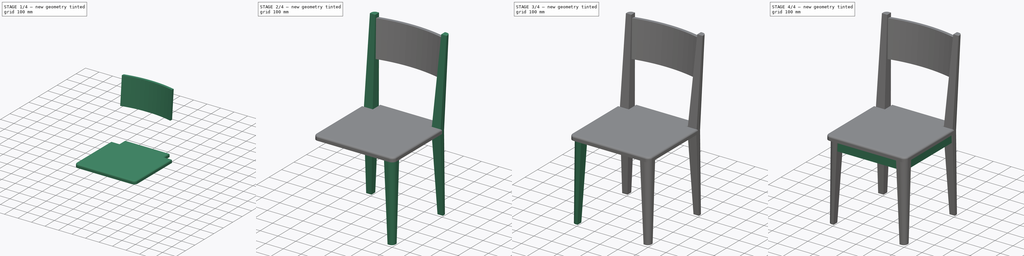
[diagram: build sequence overview — one tinted view per stage of 4, left to right]
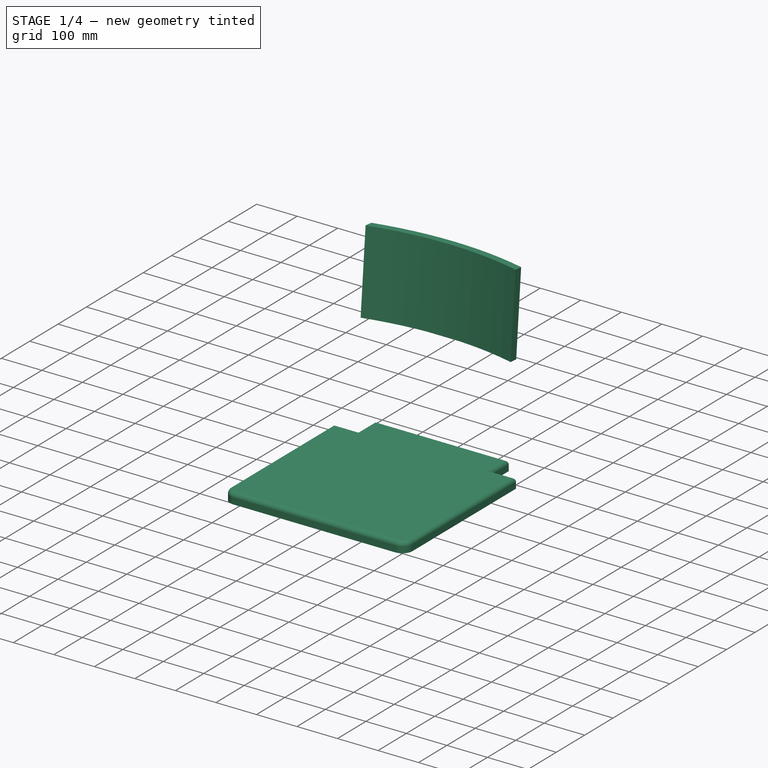
[diagram: stage 1 of 4 — iso view after this stage's code; geometry added in this stage tinted green]
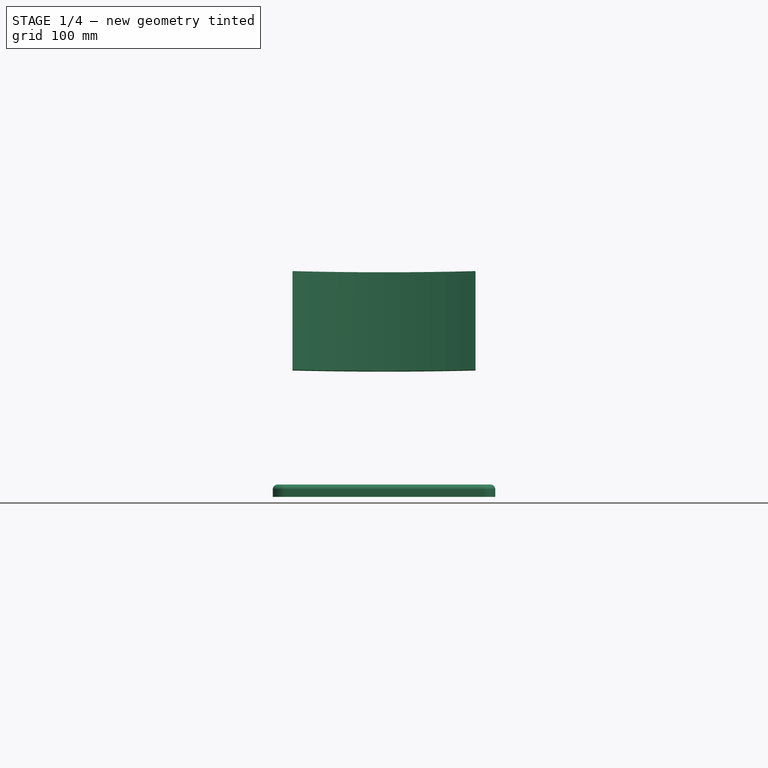
[diagram: stage 1 of 4 — front view after this stage's code; geometry added in this stage tinted green]
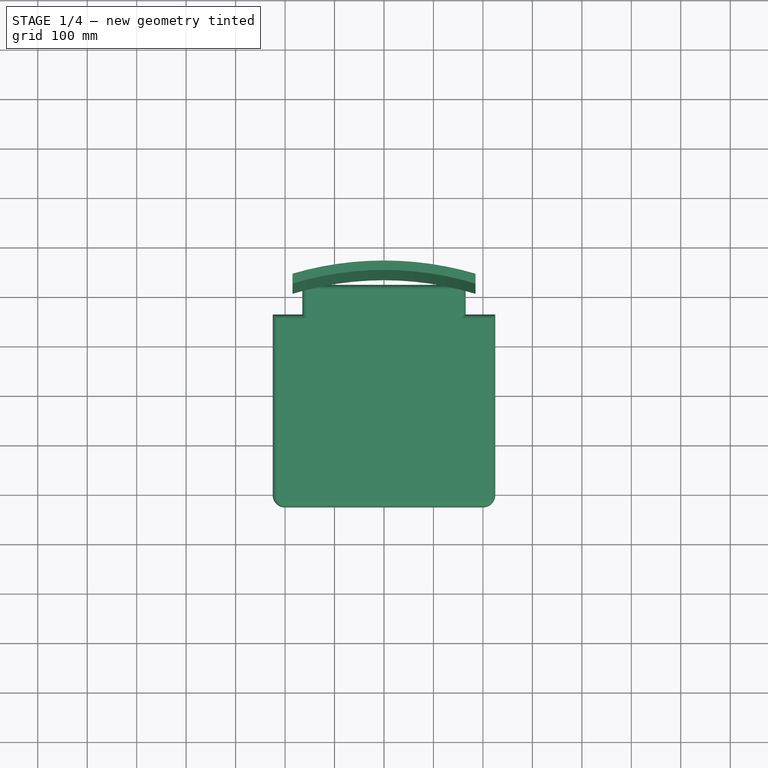
[diagram: stage 1 of 4 — top view after this stage's code; geometry added in this stage tinted green]
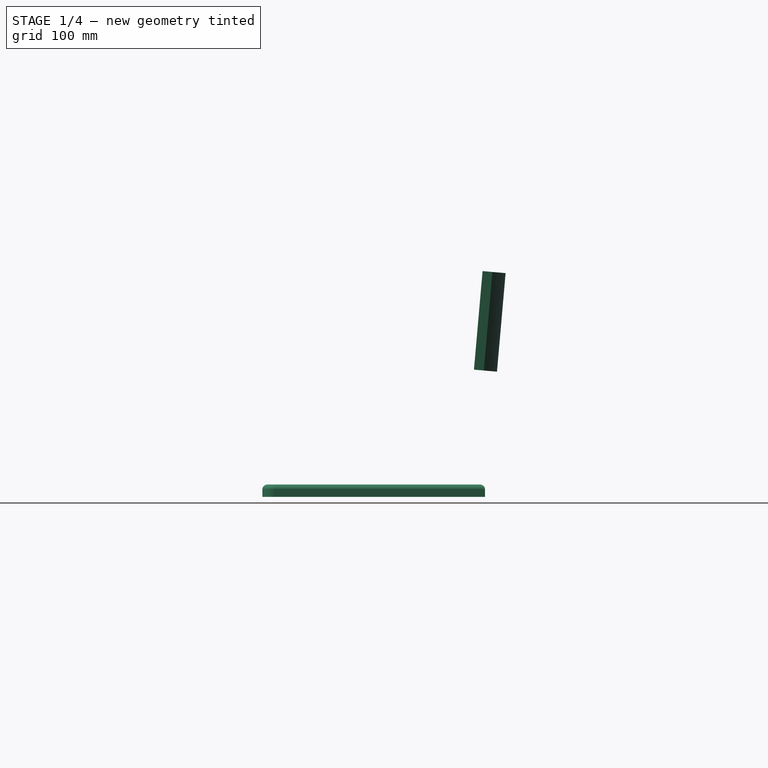
[diagram: stage 1 of 4 — right view after this stage's code; geometry added in this stage tinted green]
FCSTD DOCUMENT  (FreeCAD 1.0R38641 +468 (Git))
Label: Chair_R02
License: All rights reserved
LicenseURL: https://en.wikipedia.org/wiki/All_rights_reserved
objects: Sketcher::SketchObject×15, App::DocumentObjectGroup×12, App::MaterialObjectPython×5, App::FeaturePython×5, Part::Extrusion×4, Part::Loft×4, App::TextDocument×3, Part::Compound×2, Part::Part2DObjectPython×2, Spreadsheet::Sheet×1, App::VarSet×1, Part::Fillet×1, App::DocumentObjectGroupPython×1
note: 48 computed .brp shape members not serialized (recipe doc carries the construction recipe); baked Part::Feature solids carry a one-line shape summary decoded from their .brp

FEATURE [Sketcher::SketchObject] Sketch022  label="Chair_move_rotate_"
  ArcFitTolerance = 0
  FullyConstrained = true
  MakeInternals = false
  expr: .Constraints.Length = VarSet.Base_dimensions_B_Length
  expr: .Constraints.Width = VarSet.Base_dimensions_B_Width
  sketch-geometry (12):
    g0: LineSegment StartX=-225 StartY=225 StartZ=0 EndX=225 EndY=225 EndZ=0
    g1: LineSegment StartX=225 StartY=225 StartZ=0 EndX=225 EndY=-225 EndZ=0
    g2: LineSegment StartX=225 StartY=-225 StartZ=0 EndX=-225 EndY=-225 EndZ=0
    g3: LineSegment StartX=-225 StartY=-225 StartZ=0 EndX=-225 EndY=225 EndZ=0
    g4: LineSegment [constr] StartX=-325 StartY=325 StartZ=0 EndX=325 EndY=325 EndZ=0
    g5: LineSegment [constr] StartX=325 StartY=325 StartZ=0 EndX=325 EndY=-325 EndZ=0
    g6: LineSegment [constr] StartX=325 StartY=-325 StartZ=0 EndX=-325 EndY=-325 EndZ=0
    g7: LineSegment [constr] StartX=-325 StartY=-325 StartZ=0 EndX=-325 EndY=325 EndZ=0
    g8: LineSegment StartX=-325 StartY=0 StartZ=0 EndX=325 EndY=0 EndZ=0
    g9: LineSegment StartX=0 StartY=325 StartZ=0 EndX=0 EndY=-325 EndZ=0
    g10: Circle CenterX=0 CenterY=0 CenterZ=0 NormalX=0 NormalY=0 NormalZ=1 AngleXU=0 Radius=50
    g11: LineSegment StartX=-225 StartY=185 StartZ=0 EndX=225 EndY=185 EndZ=0
  constraints (34):
    c: Coincident(g0,g1)
    c: Coincident(g1,g2)
    c: Coincident(g2,g3)
    c: Coincident(g3,g0)
    c: Horizontal(g2)
    c: Vertical(g1)
    c: DistanceX(g2,g2) = 450  'Length'
    c: DistanceY(g3,g3) = 450  'Width'
    c: Symmetric(g0,g0,g-2)
    c: Symmetric(g0,g2,g-1)
    c: Coincident(g4,g5)
    c: Coincident(g5,g6)
    c: Coincident(g6,g7)
    c: Coincident(g7,g4)
    c: Horizontal(g6)
    c: Vertical(g7)
    c: Symmetric(g4,g5,g-1)
    c: Symmetric(g4,g4,g-2)
    c: DistanceY(g0,g4) = 100
    c: DistanceX(g0,g4) = 100
    c: PointOnObject(g8,g7)
    c: PointOnObject(g8,g5)
    c: Horizontal(g8)
    c: PointOnObject(g9,g4)
    c: PointOnObject(g9,g6)
    c: Vertical(g9)
    c: PointOnObject(g8,g-1)
    c: PointOnObject(g9,g-2)
    c: Coincident(g10,g-1)
    c: Diameter(g10) = 100
    c: PointOnObject(g11,g3)
    c: PointOnObject(g11,g1)
    c: Horizontal(g11)
    c: DistanceY(g11,g0) = 40
FEATURE [Spreadsheet::Sheet] Spreadsheet003  label="Chair_outputs"
  cells = A1='Description:; A2==<<%s>> % VarSet.A_Component_Label + << of %s x %s x %s>> % tuple(VarSet.Base_dimensions_B_Length; VarSet.Base_dimensions_B_Width; VarSet.Backrest_B_Total_height) + << in length, width and height, compound of seat of %s>> % VarSet.Seat_C_Material.Label + <<, backrest of %s>> % VarSet.Backrest_C_Material.Label + << and feet of %s>> % VarSet.Feet_C_Material.Label + <<.>>; A4='Parts; B4='L; C4='H; D4='W; E4='T; F4='A; G4='Materials; H4='Quantities; A5='01-Seat; B5==VarSet.Base_dimensions_B_Length; D5==VarSet.Base_dimensions_B_Width; E5==VarSet.Seat_B_Thickness; F5==Extrude039021.Area; G5==VarSet.Seat_C_Material.Label; H5=1; A6='02-Backrest; B6==VarSet.Base_dimensions_B_Length - 100 mm; C6==VarSet.Backrest_B_Height; E6==Sketch.Constraints.Thickness; F6==Extrude.Area; G6==VarSet.Seat_C_Material.Label; H6=1; A7='03-Foot frames; B7==(VarSet.Base_dimensions_B_Length - 180 mm) * 2 + (VarSet.Base_dimensions_B_Width - 120 mm) * 2; C7==Sketch259.Constraints.Height; E7==Sketch259.Constraints.Width; G7==VarSet.Foot_frames_C_Material.Label; H7=4; A8='04-Feet; C8==VarSet.Seat_B_Height - VarSet.Seat_B_Thickness; E8==<<from %s>> % Sketch257.Constraints.Thickness + << to %s>> % Sketch258.Constraints.Thickness; G8==VarSet.Feet_C_Material.Label; H8=4
FEATURE [Sketcher::SketchObject] Sketch255  label="Sketch032_Bottom_panel"
  ArcFitTolerance = 0
  AttachmentSupport = -> [Sketch022]
  ExternalGeometry = -> [Sketch022]
  FullyConstrained = true
  MakeInternals = false
  MapMode = 2
  expr: .Constraints.Radius = VarSet.Seat_B_Radius_fillet
  sketch-geometry (10):
    g0: LineSegment StartX=225 StartY=165 StartZ=0 EndX=225 EndY=-200 EndZ=0
    g1: LineSegment StartX=200 StartY=-225 StartZ=0 EndX=-200 EndY=-225 EndZ=0
    g2: LineSegment StartX=-225 StartY=-200 StartZ=0 EndX=-225 EndY=165 EndZ=0
    g3: ArcOfCircle CenterX=-200 CenterY=-200 CenterZ=0 NormalX=0 NormalY=0 NormalZ=1 AngleXU=0 Radius=25 StartAngle=3.14159 EndAngle=4.71239
    g4: ArcOfCircle CenterX=200 CenterY=-200 CenterZ=0 NormalX=0 NormalY=0 NormalZ=1 AngleXU=0 Radius=25 StartAngle=4.71239 EndAngle=6.28319
    g5: LineSegment StartX=-225 StartY=165 StartZ=0 EndX=-165 EndY=165 EndZ=0
    g6: LineSegment StartX=-165 StartY=165 StartZ=0 EndX=-165 EndY=225 EndZ=0
    g7: LineSegment StartX=-165 StartY=225 StartZ=0 EndX=165 EndY=225 EndZ=0
    g8: LineSegment StartX=165 StartY=225 StartZ=0 EndX=165 EndY=165 EndZ=0
    g9: LineSegment StartX=165 StartY=165 StartZ=0 EndX=225 EndY=165 EndZ=0
  constraints (28):
    c: Horizontal(g1)
    c: Vertical(g0)
    c: Vertical(g2)
    c: Tangent(g2,g3) = 1.5708
    c: Tangent(g1,g3) = 1.5708
    c: Tangent(g1,g4) = 1.5708
    c: Tangent(g0,g4) = 1.5708
    c: PointOnObject(g2,g-3)
    c: PointOnObject(g0,g-4)
    c: Horizontal(g1,g-4)
    c: Coincident(g2,g5)
    c: Horizontal(g5)
    c: Coincident(g5,g6)
    c: Vertical(g6)
    c: Coincident(g6,g7)
    c: Horizontal(g7)
    c: Coincident(g7,g8)
    c: Coincident(g8,g9)
    c: Coincident(g9,g0)
    c: Horizontal(g9)
    c: Horizontal(g5,g8)
    c: Equal(g5,g9)
    c: Vertical(g8)
    c: Radius(g4) = 25  'Radius'
    c: Equal(g3,g4)
    c: DistanceY(g6,g6) = 60
    c: DistanceX(g9,g9) = 60
    c: Horizontal(g6,g-3)
FEATURE [Part::Extrusion] Extrude039021  label="01-Seat_"
  Area = 10000
  Base = -> Sketch255
  Dir = (0,0,1)
  DirMode = 2
  FaceMakerClass = Part::FaceMakerBullseye
  FaceMakerMode = 3
  LengthFwd = 25
  LengthRev = 0
  Placement = pos=(0,0,450) rot=(0,0,1;0rad)
  Reversed = true
  Solid = true
  Symmetric = false
  expr: .Placement.Base.z = VarSet.Seat_B_Height
  expr: Area = .Shape.Face9.Area
  expr: LengthFwd = VarSet.Seat_B_Thickness <= 11 mm ? 11 mm : VarSet.Seat_B_Thickness
FEATURE [App::MaterialObjectPython] Material055  label="white Formica generic"  # material (typed FeaturePython)
  Description = A standard ceramic
  Material = AuthorAndLicense=(c) 2015 Bernd Hahnebach (CC-BY 3.0); CardName=Wood-Generic; Color=(0.8, 0.8, 0.8, 1.0); Density=700 kg/m^3; Description=A standard ceramic; DiffuseColor=(1.0, 1.0, 1.0); Father=Aggregate; Name=white Formica generic; PoissonRatio=0.05; ProductURL=https://en.wikipedia.org/wiki/Wood; SectionColor=(0.8, 0.8, 0.8, 1.0); Transparency=0; ViewColor=(0.8, 0.8, 0.8, 1.0); YoungsModulus=12000 MPa
  ProductURL = https://en.wikipedia.org/wiki/Wood
  Transparency = 0
FEATURE [App::VarSet] VarSet  label="01-Prop_Chair_configurations_#_"
  A_Component_Label = Chair
  Backrest_B_Height = 200
  Backrest_B_Total_height = 900
  Backrest_C_Material = -> Material055
  Base_dimensions_B_Length = 450
  Base_dimensions_B_Width = 450
  Feet_C_Material = -> Material053
  Foot_frames_C_Material = -> Material053
  Seat_B_Height = 450
  Seat_B_Radius_fillet = 25
  Seat_B_Thickness = 25
  Seat_C_Material = -> Material055
  Visualization_A_Visualization = true
FEATURE [Part::Extrusion] Extrude  label="02-Backrest"
  Area = 75091.7
  Base = -> Sketch
  Dir = (0,0.0871557,0.996195)
  DirMode = 2
  FaceMakerClass = Part::FaceMakerBullseye
  FaceMakerMode = 3
  LengthFwd = 200
  LengthRev = 0
  Material = -> Material055
  Solid = true
  Symmetric = false
  expr: Area = .Shape.Face3.Area
  expr: LengthFwd = VarSet.Backrest_B_Height
  expr: Material = VarSet.Backrest_C_Material
  expr: Visibility = VarSet.Visualization_A_Visualization
FEATURE [Part::Fillet] Fillet  label="01-Seat_001"
  Base = -> Extrude039021
  EdgeLinks = -> Extrude039021 [Edge3,Edge6,Edge9,Edge12,Edge15,Edge18,Edge21,Edge24,Edge27,Edge29]
  Edges = 10 edges r=10: [Edge3,Edge6,Edge9,Edge12,Edge15,Edge18,Edge21,Edge24,Edge27,Edge29]
  Material = -> Material055
  expr: Material = VarSet.Seat_C_Material
  expr: Visibility = VarSet.Visualization_A_Visualization
FEATURE [App::DocumentObjectGroup] Group248  label="03-Component_parts_"
  Group = -> [Fillet,Extrude,Compound,Compound001]
FEATURE [App::FeaturePython] Section  label="Section_Plan_01"  # WARN: FeaturePython — macro-defined, semantics opaque (R4)
  AttacherType = Attacher::AttachEngine3D
  AttachmentOffset = pos=(0,0,1500) rot=(0,0,1;0rad)
  AttachmentSupport = -> [Sketch022]
  Clip = false
  Depth = 0
  MapMode = 2
  Objects = -> [Group248]
  OnlySolids = true
  Placement = pos=(0,0,1500) rot=(0,0,1;0rad)
  UseMaterialColorForFill = false
FEATURE [App::FeaturePython] Section002  label="Section002_Lateral_01"  # WARN: FeaturePython — macro-defined, semantics opaque (R4)
  AttacherType = Attacher::AttachEngine3D
  AttachmentOffset = pos=(0,600,1000) rot=(0,0,1;0rad)
  AttachmentSupport = -> [Sketch022]
  Clip = false
  Depth = 0
  MapMode = 4
  Objects = -> [Group248]
  OnlySolids = true
  Placement = pos=(1000,0,600) rot=(0.57735,0.57735,0.57735;2.0944rad)
  UseMaterialColorForFill = false
FEATURE [App::FeaturePython] Section003  label="Section003_Transversal"  # WARN: FeaturePython — macro-defined, semantics opaque (R4)
  AttacherType = Attacher::AttachEngine3D
  AttachmentOffset = pos=(0,600,0) rot=(0,0,1;0rad)
  AttachmentSupport = -> [Sketch022]
  Clip = false
  Depth = 0
  MapMode = 4
  Objects = -> [Group248]
  OnlySolids = true
  Placement = pos=(0,0,600) rot=(0.57735,0.57735,0.57735;2.0944rad)
  UseMaterialColorForFill = false
FEATURE [App::FeaturePython] Section004  label="Section004_Lateral_02"  # WARN: FeaturePython — macro-defined, semantics opaque (R4)
  AttacherType = Attacher::AttachEngine3D
  AttachmentOffset = pos=(0,600,1000) rot=(0,0,1;0rad)
  AttachmentSupport = -> [Sketch022]
  Clip = false
  Depth = 0
  MapMode = 4
  Objects = -> [Group248]
  OnlySolids = true
  Placement = pos=(-1000,0,600) rot=(0.57735,-0.57735,-0.57735;2.0944rad)
  UseMaterialColorForFill = false
FEATURE [App::FeaturePython] Section005  label="Section005_Frontal_"  # WARN: FeaturePython — macro-defined, semantics opaque (R4)
  AttacherType = Attacher::AttachEngine3D
  AttachmentOffset = pos=(0,600,1000) rot=(0,0,1;0rad)
  AttachmentSupport = -> [Sketch022]
  Clip = false
  Depth = 0
  MapMode = 3
  Objects = -> [Group248]
  OnlySolids = true
  Placement = pos=(0,-1000,600) rot=(1,0,0;1.5708rad)
  UseMaterialColorForFill = false
FEATURE [Part::Part2DObjectPython] Shape2DView  label="Plan_chair_"  # Draft 2D object (typed FeaturePython)
  AutoUpdate = true
  Base = -> Section
  Clip = false
  FuseArch = false
  HiddenLines = false
  InPlace = true
  OnlySolids = false
  Projection = (0.790218,-0.528948,0.309466)
  ProjectionMode = 0
  SegmentLength = 0.05
  Tessellation = false
  VisibleOnly = false
FEATURE [App::DocumentObjectGroup] Group293  label="06-Drawings_2D_chair_#_"
  Group = -> [Shape2DView]
FEATURE [App::DocumentObjectGroup] Group294  label="Wood_"
  Group = -> [Material053,Material055]
FEATURE [App::MaterialObjectPython] Material057  label="white fabric generic"  # material (typed FeaturePython)
  Description = A standard fabric
  Material = AuthorAndLicense=(c) 2015 Bernd Hahnebach (CC-BY 3.0); CardName=Wood-Generic; Color=(0.8, 0.8, 0.8, 1.0); Density=700 kg/m^3; Description=A standard fabric; DiffuseColor=(1.0, 1.0, 1.0); Father=Aggregate; Name=white fabric generic; PoissonRatio=0.05; ProductURL=https://en.wikipedia.org/wiki/Wood; SectionColor=(0.8, 0.8, 0.8, 1.0); Transparency=0; ViewColor=(0.8, 0.8, 0.8, 1.0); YoungsModulus=12000 MPa
  Transparency = 0
FEATURE [App::DocumentObjectGroup] Group304  label="Fabric_"
  Group = -> [Material057]
FEATURE [App::DocumentObjectGroupPython] MaterialContainer001  label="02-Materials"  # scripted group (container) (typed FeaturePython)
  Group = -> [Group304,Group295,Group294]
FEATURE [App::DocumentObjectGroup] Group251  label="08-Materials_chair_#_"
  Group = -> [MaterialContainer001]
FEATURE [Part::Part2DObjectPython] Shape2DView001  label="Plan_Chair"  # Draft 2D object (typed FeaturePython)
  AutoUpdate = true
  Base = -> Section
  Clip = false
  FuseArch = false
  HiddenLines = false
  InPlace = true
  OnlySolids = false
  Projection = (0.804417,-0.0661934,0.590366)
  ProjectionMode = 0
  SegmentLength = 0.05
  Tessellation = false
  VisibleOnly = false
  expr: Label = <<Plan_>> + VarSet.A_Component_Label
FEATURE [App::DocumentObjectGroup] Group002  label="09-Sections_plan_#_"
  Group = -> [Section,Section002,Section003,Section004,Section005,Shape2DView001]
FEATURE [App::DocumentObjectGroup] Group286  label="Chair_#_"
  Group = -> [VarSet,Group292,Group248,Group249,Group250,Group293,Group,Group251,Group002]
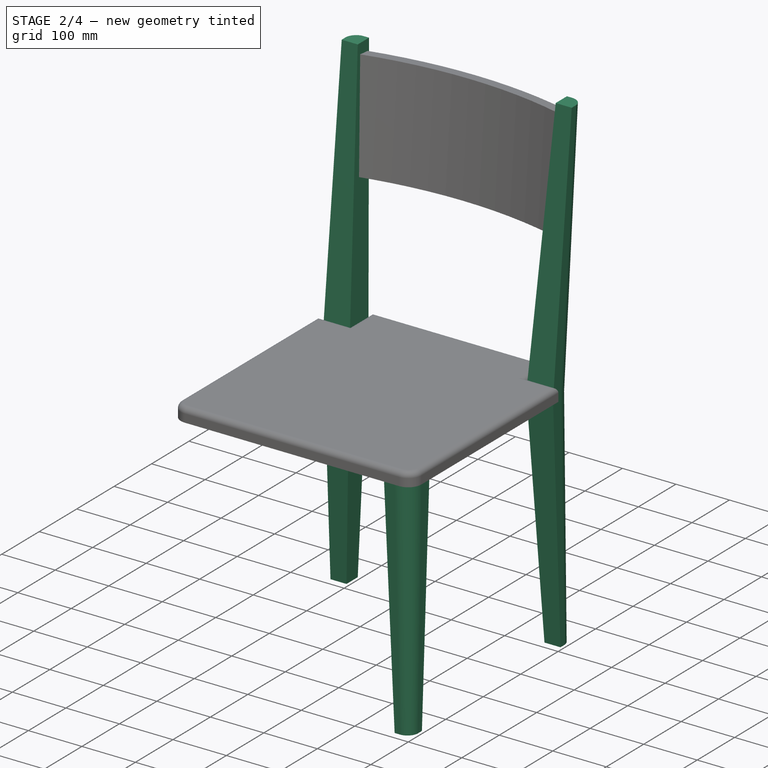
[diagram: stage 2 of 4 — iso view after this stage's code; geometry added in this stage tinted green]
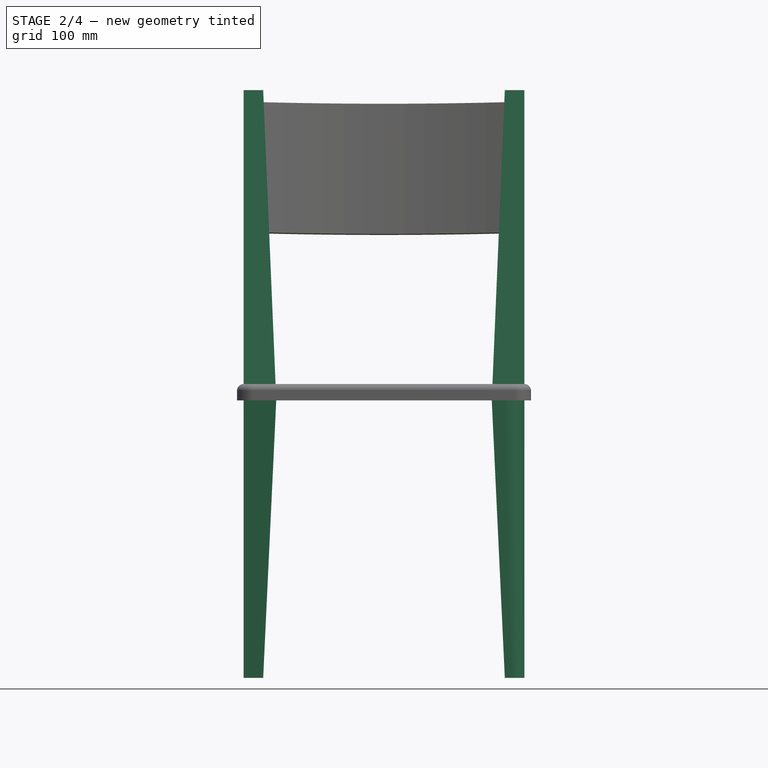
[diagram: stage 2 of 4 — front view after this stage's code; geometry added in this stage tinted green]
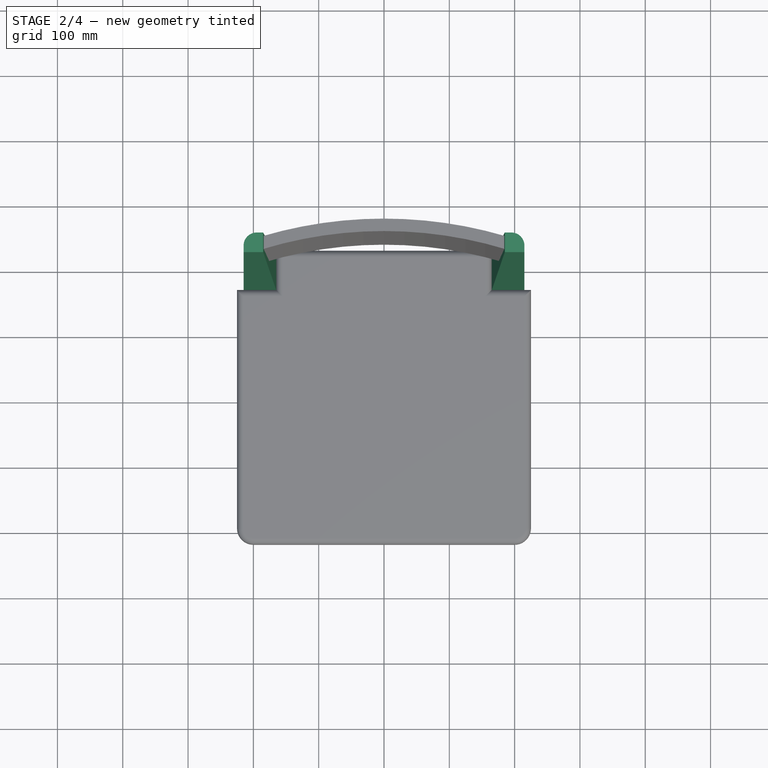
[diagram: stage 2 of 4 — top view after this stage's code; geometry added in this stage tinted green]
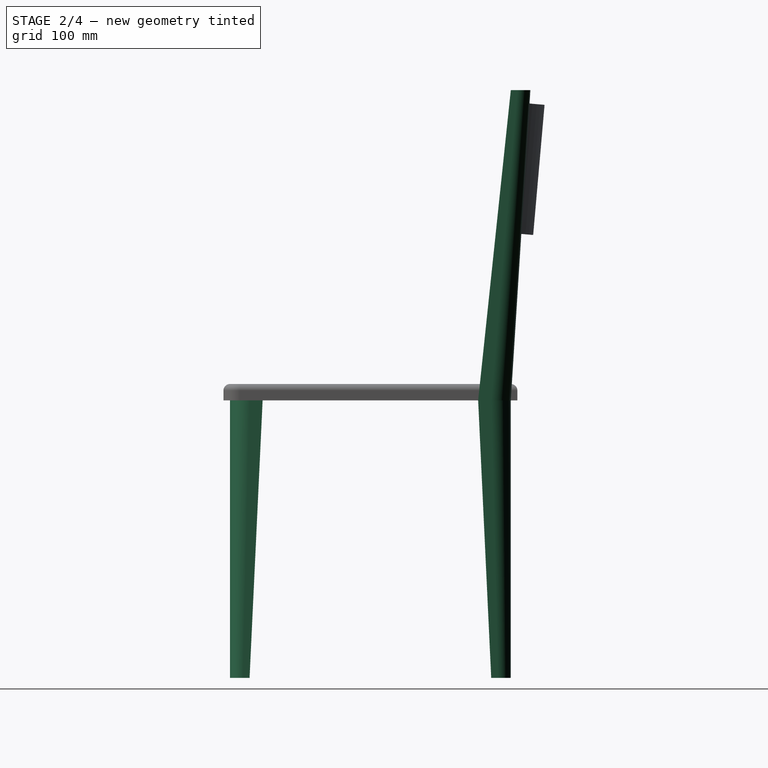
[diagram: stage 2 of 4 — right view after this stage's code; geometry added in this stage tinted green]
FEATURE [Sketcher::SketchObject] Sketch260
  ArcFitTolerance = 0
  AttachmentSupport = -> [Sketch022]
  ExternalGeometry = -> [Sketch022]
  FullyConstrained = true
  MakeInternals = false
  MapMode = 2
  sketch-geometry (5):
    g0: LineSegment StartX=-195 StartY=215 StartZ=0 EndX=-185 EndY=215 EndZ=0
    g1: LineSegment StartX=-185 StartY=215 StartZ=0 EndX=-185 EndY=185 EndZ=0
    g2: LineSegment StartX=-185 StartY=185 StartZ=0 EndX=-215 EndY=185 EndZ=0
    g3: LineSegment StartX=-215 StartY=185 StartZ=0 EndX=-215 EndY=195 EndZ=0
    g4: ArcOfCircle CenterX=-195 CenterY=195 CenterZ=0 NormalX=0 NormalY=0 NormalZ=1 AngleXU=0 Radius=20 StartAngle=1.5708 EndAngle=3.14159
  constraints (14):
    c: Coincident(g0,g1)
    c: Coincident(g1,g2)
    c: Coincident(g2,g3)
    c: Horizontal(g0)
    c: Horizontal(g2)
    c: Vertical(g1)
    c: Vertical(g3)
    c: DistanceY(g1,g1) = 30  'Thickness'
    c: Tangent(g3,g4) = 1.5708
    c: Tangent(g0,g4) = 1.5708
    c: DistanceY(g0,g-3) = 10
    c: DistanceX(g-3,g2) = 10
    c: DistanceX(g4,g1) = 10
    c: DistanceY(g1,g4) = 10
FEATURE [Sketcher::SketchObject] Sketch261
  ArcFitTolerance = 0
  AttachmentOffset = pos=(0,0,425) rot=(0,0,1;0rad)
  AttachmentSupport = -> [Sketch022]
  ExternalGeometry = -> [Sketch022]
  FullyConstrained = true
  MakeInternals = false
  MapMode = 2
  Placement = pos=(0,0,425) rot=(0,0,1;0rad)
  expr: .AttachmentOffset.Base.z = VarSet.Seat_B_Height - VarSet.Seat_B_Thickness
  sketch-geometry (5):
    g0: LineSegment StartX=-185 StartY=215 StartZ=0 EndX=-165 EndY=215 EndZ=0
    g1: LineSegment StartX=-165 StartY=215 StartZ=0 EndX=-165 EndY=165 EndZ=0
    g2: LineSegment StartX=-165 StartY=165 StartZ=0 EndX=-215 EndY=165 EndZ=0
    g3: LineSegment StartX=-215 StartY=165 StartZ=0 EndX=-215 EndY=185 EndZ=0
    g4: ArcOfCircle CenterX=-185 CenterY=185 CenterZ=0 NormalX=0 NormalY=0 NormalZ=1 AngleXU=0 Radius=30 StartAngle=1.5708 EndAngle=3.14159
  constraints (14):
    c: Coincident(g0,g1)
    c: Coincident(g1,g2)
    c: Coincident(g2,g3)
    c: Horizontal(g0)
    c: Horizontal(g2)
    c: Vertical(g1)
    c: Vertical(g3)
    c: DistanceY(g1,g1) = 50  'Tickness'
    c: Tangent(g3,g4) = 1.5708
    c: Tangent(g0,g4) = 1.5708
    c: DistanceX(g-3,g2) = 10
    c: DistanceY(g0,g-3) = 10
    c: DistanceX(g4,g1) = 20
    c: DistanceY(g1,g4) = 20
FEATURE [Sketcher::SketchObject] Sketch262
  ArcFitTolerance = 0
  AttachmentSupport = -> [Sketch022]
  ExternalGeometry = -> [Sketch022]
  FullyConstrained = true
  MakeInternals = false
  MapMode = 2
  sketch-geometry (5):
    g0: LineSegment StartX=185 StartY=-185 StartZ=0 EndX=215 EndY=-185 EndZ=0
    g1: LineSegment StartX=215 StartY=-185 StartZ=0 EndX=215 EndY=-195 EndZ=0
    g2: LineSegment StartX=195 StartY=-215 StartZ=0 EndX=185 EndY=-215 EndZ=0
    g3: LineSegment StartX=185 StartY=-215 StartZ=0 EndX=185 EndY=-185 EndZ=0
    g4: ArcOfCircle CenterX=195 CenterY=-195 CenterZ=0 NormalX=0 NormalY=0 NormalZ=1 AngleXU=0 Radius=20 StartAngle=4.71239 EndAngle=6.28319
  constraints (14):
    c: Coincident(g0,g1)
    c: Coincident(g2,g3)
    c: Coincident(g3,g0)
    c: Horizontal(g0)
    c: Horizontal(g2)
    c: Vertical(g1)
    c: Vertical(g3)
    c: DistanceX(g0,g0) = 30  'Thickness'
    c: Tangent(g1,g4) = 1.5708
    c: Tangent(g2,g4) = 1.5708
    c: DistanceX(g0,g-4) = 10
    c: DistanceY(g-4,g2) = 10
    c: DistanceX(g0,g4) = 10
    c: DistanceY(g4,g0) = 10
FEATURE [Sketcher::SketchObject] Sketch263
  ArcFitTolerance = 0
  AttachmentOffset = pos=(0,0,425) rot=(0,0,1;0rad)
  AttachmentSupport = -> [Sketch022]
  ExternalGeometry = -> [Sketch022]
  FullyConstrained = true
  MakeInternals = false
  MapMode = 2
  Placement = pos=(0,0,425) rot=(0,0,1;0rad)
  expr: .AttachmentOffset.Base.z = VarSet.Seat_B_Height - VarSet.Seat_B_Thickness
  sketch-geometry (5):
    g0: LineSegment StartX=165 StartY=-165 StartZ=0 EndX=215 EndY=-165 EndZ=0
    g1: LineSegment StartX=215 StartY=-165 StartZ=0 EndX=215 EndY=-185 EndZ=0
    g2: LineSegment StartX=185 StartY=-215 StartZ=0 EndX=165 EndY=-215 EndZ=0
    g3: LineSegment StartX=165 StartY=-215 StartZ=0 EndX=165 EndY=-165 EndZ=0
    g4: ArcOfCircle CenterX=185 CenterY=-185 CenterZ=0 NormalX=0 NormalY=0 NormalZ=1 AngleXU=0 Radius=30 StartAngle=4.71239 EndAngle=6.28319
  constraints (14):
    c: Coincident(g0,g1)
    c: Coincident(g2,g3)
    c: Coincident(g3,g0)
    c: Horizontal(g0)
    c: Horizontal(g2)
    c: Vertical(g1)
    c: Vertical(g3)
    c: DistanceX(g0,g0) = 50  'Thickness'
    c: Tangent(g2,g4) = 1.5708
    c: Tangent(g1,g4) = 1.5708
    c: DistanceY(g-4,g2) = 10
    c: DistanceX(g0,g-4) = 10
    c: DistanceX(g0,g4) = 20
    c: DistanceY(g4,g0) = 20
FEATURE [Part::Loft] Loft002  label="Foot_03_"
  Closed = false
  MaxDegree = 5
  Ruled = true
  Sections = -> [Sketch262,Sketch263]
  Solid = true
FEATURE [App::DocumentObjectGroup] Group292  label="02-Elements_to_move_rotate"
  Group = -> [Sketch022]
FEATURE [App::DocumentObjectGroup] Group249  label="04-Spreadsheet_"
  Group = -> [Spreadsheet003]
FEATURE [App::TextDocument] Text_document002  label="Rectangular_table_file_configurations_"
  Text = <blob: 3155 chars omitted>
FEATURE [App::TextDocument] Text_document003  label="Guidelines_new_objects_properties_"
  Text = <blob: 3302 chars omitted>
FEATURE [App::DocumentObjectGroup] Group250  label="05-Guidelines_"
  Group = -> [Text_document002,Text_document003]
FEATURE [Sketcher::SketchObject] Sketch267
  ArcFitTolerance = 0
  AttachmentOffset = pos=(0,0,900) rot=(0,0,1;0rad)
  AttachmentSupport = -> [Sketch022]
  ExternalGeometry = -> [Sketch022]
  FullyConstrained = true
  MakeInternals = false
  MapMode = 2
  Placement = pos=(0,0,900) rot=(0,0,1;0rad)
  expr: .AttachmentOffset.Base.z = VarSet.Backrest_B_Total_height
  sketch-geometry (5):
    g0: LineSegment StartX=-195 StartY=245 StartZ=0 EndX=-185 EndY=245 EndZ=0
    g1: LineSegment StartX=-185 StartY=245 StartZ=0 EndX=-185 EndY=215 EndZ=0
    g2: LineSegment StartX=-185 StartY=215 StartZ=0 EndX=-215 EndY=215 EndZ=0
    g3: LineSegment StartX=-215 StartY=215 StartZ=0 EndX=-215 EndY=225 EndZ=0
    g4: ArcOfCircle CenterX=-195 CenterY=225 CenterZ=0 NormalX=0 NormalY=0 NormalZ=1 AngleXU=0 Radius=20 StartAngle=1.5708 EndAngle=3.14159
  constraints (14):
    c: Coincident(g0,g1)
    c: Coincident(g1,g2)
    c: Coincident(g2,g3)
    c: Horizontal(g0)
    c: Horizontal(g2)
    c: Vertical(g1)
    c: Vertical(g3)
    c: DistanceY(g1,g1) = 30  'Thickness'
    c: Tangent(g3,g4) = 1.5708
    c: Tangent(g0,g4) = 1.5708
    c: DistanceX(g-3,g2) = 10
    c: DistanceX(g4,g1) = 10
    c: DistanceY(g1,g4) = 10
    c: DistanceY(g-3,g0) = 20
FEATURE [Sketcher::SketchObject] Sketch268
  ArcFitTolerance = 0
  AttachmentOffset = pos=(0,0,900) rot=(0,0,1;0rad)
  AttachmentSupport = -> [Sketch022]
  ExternalGeometry = -> [Sketch022]
  FullyConstrained = true
  MakeInternals = false
  MapMode = 2
  Placement = pos=(0,0,900) rot=(0,0,1;0rad)
  expr: .AttachmentOffset.Base.z = VarSet.Backrest_B_Total_height
  sketch-geometry (5):
    g0: LineSegment StartX=185 StartY=245 StartZ=0 EndX=195 EndY=245 EndZ=0
    g1: LineSegment StartX=215 StartY=225 StartZ=0 EndX=215 EndY=215 EndZ=0
    g2: LineSegment StartX=215 StartY=215 StartZ=0 EndX=185 EndY=215 EndZ=0
    g3: LineSegment StartX=185 StartY=215 StartZ=0 EndX=185 EndY=245 EndZ=0
    g4: ArcOfCircle CenterX=195 CenterY=225 CenterZ=0 NormalX=0 NormalY=0 NormalZ=1 AngleXU=0 Radius=20 StartAngle=-9e-16 EndAngle=1.5708
  constraints (14):
    c: Coincident(g1,g2)
    c: Coincident(g2,g3)
    c: Coincident(g3,g0)
    c: Horizontal(g0)
    c: Horizontal(g2)
    c: Vertical(g1)
    c: Vertical(g3)
    c: Tangent(g0,g4) = 1.5708
    c: Tangent(g1,g4) = 1.5708
    c: DistanceX(g2,g2) = 30  'Thickness'
    c: DistanceX(g1,g-4) = 10
    c: DistanceX(g2,g4) = 10
    c: DistanceY(g2,g4) = 10
    c: DistanceY(g-4,g0) = 20
FEATURE [Part::Loft] Loft004  label="Loft004_foot_backrest_"
  Closed = false
  MaxDegree = 5
  Ruled = true
  Sections = -> [Sketch264,Sketch265,Sketch268]
  Solid = true
FEATURE [Part::Loft] Loft005  label="Loft005_foot_backrest_"
  Closed = false
  MaxDegree = 5
  Ruled = true
  Sections = -> [Sketch260,Sketch261,Sketch267]
  Solid = true
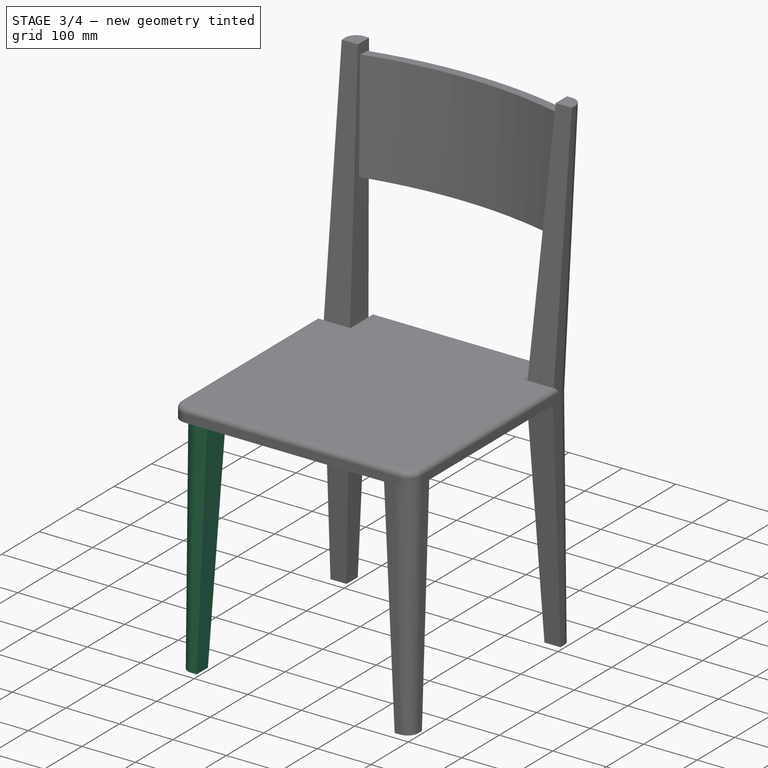
[diagram: stage 3 of 4 — iso view after this stage's code; geometry added in this stage tinted green]
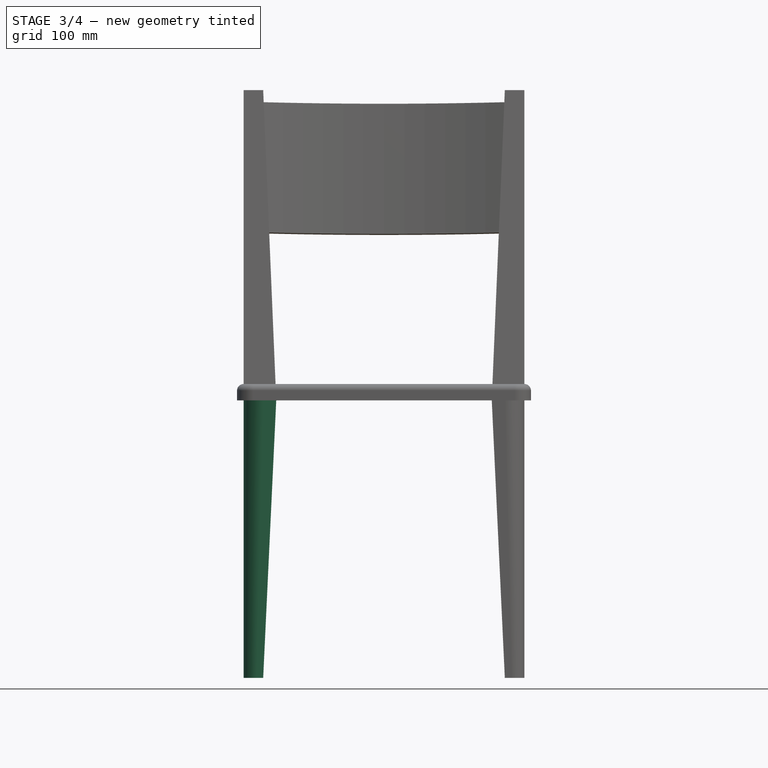
[diagram: stage 3 of 4 — front view after this stage's code; geometry added in this stage tinted green]
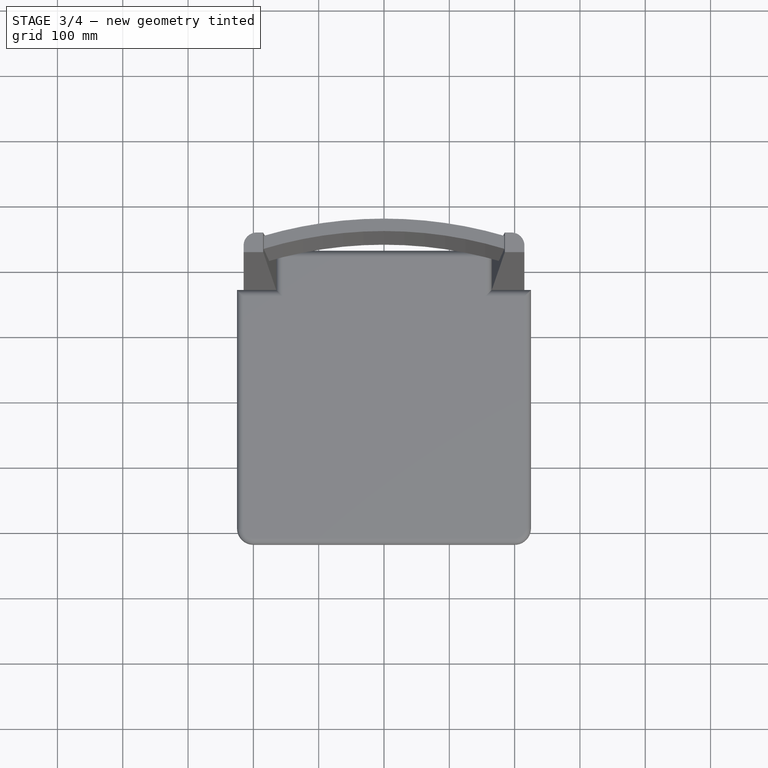
[diagram: stage 3 of 4 — top view after this stage's code; geometry added in this stage tinted green]
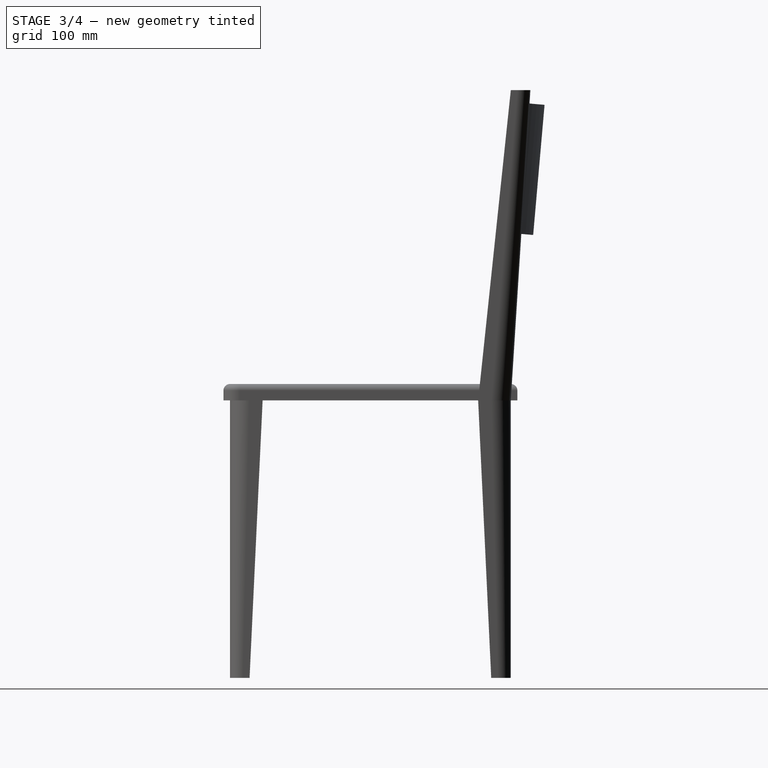
[diagram: stage 3 of 4 — right view after this stage's code; geometry added in this stage tinted green]
FEATURE [Sketcher::SketchObject] Sketch257
  ArcFitTolerance = 0
  AttachmentSupport = -> [Sketch022]
  ExternalGeometry = -> [Sketch022]
  FullyConstrained = true
  MakeInternals = false
  MapMode = 2
  sketch-geometry (5):
    g0: LineSegment StartX=-215 StartY=-185 StartZ=0 EndX=-185 EndY=-185 EndZ=0
    g1: LineSegment StartX=-185 StartY=-185 StartZ=0 EndX=-185 EndY=-215 EndZ=0
    g2: LineSegment StartX=-185 StartY=-215 StartZ=0 EndX=-195 EndY=-215 EndZ=0
    g3: LineSegment StartX=-215 StartY=-195 StartZ=0 EndX=-215 EndY=-185 EndZ=0
    g4: ArcOfCircle CenterX=-195 CenterY=-195 CenterZ=0 NormalX=0 NormalY=0 NormalZ=1 AngleXU=0 Radius=20 StartAngle=3.14159 EndAngle=4.71239
  constraints (14):
    c: Coincident(g0,g1)
    c: Coincident(g1,g2)
    c: Coincident(g3,g0)
    c: Horizontal(g0)
    c: Horizontal(g2)
    c: Vertical(g1)
    c: Vertical(g3)
    c: Tangent(g3,g4) = 1.5708
    c: Tangent(g2,g4) = 1.5708
    c: DistanceX(g0,g0) = 30  'Thickness'
    c: DistanceX(g-3,g0) = 10  'Distance_side_01'
    c: DistanceY(g-3,g1) = 10  'Distance_side_02'
    c: DistanceY(g4,g0) = 10
    c: DistanceX(g4,g0) = 10
FEATURE [Sketcher::SketchObject] Sketch258
  ArcFitTolerance = 0
  AttachmentOffset = pos=(-3,0,425) rot=(0,0,1;0rad)
  AttachmentSupport = -> [Sketch022]
  ExternalGeometry = -> [Sketch022]
  FullyConstrained = true
  MakeInternals = false
  MapMode = 2
  Placement = pos=(-3,0,425) rot=(0,0,1;0rad)
  expr: .AttachmentOffset.Base.z = VarSet.Seat_B_Height - VarSet.Seat_B_Thickness
  sketch-geometry (5):
    g0: LineSegment StartX=-212 StartY=-165 StartZ=0 EndX=-162 EndY=-165 EndZ=0
    g1: LineSegment StartX=-162 StartY=-165 StartZ=0 EndX=-162 EndY=-215 EndZ=0
    g2: LineSegment StartX=-162 StartY=-215 StartZ=0 EndX=-182 EndY=-215 EndZ=0
    g3: LineSegment StartX=-212 StartY=-185 StartZ=0 EndX=-212 EndY=-165 EndZ=0
    g4: ArcOfCircle CenterX=-182 CenterY=-185 CenterZ=0 NormalX=0 NormalY=0 NormalZ=1 AngleXU=0 Radius=30 StartAngle=3.14159 EndAngle=4.71239
  constraints (14):
    c: Coincident(g0,g1)
    c: Coincident(g1,g2)
    c: Coincident(g3,g0)
    c: Horizontal(g0)
    c: Horizontal(g2)
    c: Vertical(g1)
    c: Vertical(g3)
    c: DistanceX(g0,g0) = 50  'Thickness'
    c: Tangent(g2,g4) = 1.5708
    c: Tangent(g3,g4) = 1.5708
    c: DistanceX(g-3,g0) = 10  'Distance_side_01'
    c: DistanceY(g-3,g1) = 10  'Distance_side_02'
    c: DistanceX(g4,g0) = 20
    c: DistanceY(g4,g0) = 20
FEATURE [Part::Loft] Loft  label="Foot_01_"
  Closed = false
  MaxDegree = 5
  Ruled = true
  Sections = -> [Sketch257,Sketch258]
  Solid = true
FEATURE [Part::Compound] Compound001  label="04-Feet_backrest_"
  Links = -> [Loft,Loft002,Loft004,Loft005]
  Material = -> Material053
  expr: Material = VarSet.Feet_C_Material
  expr: Visibility = VarSet.Visualization_A_Visualization
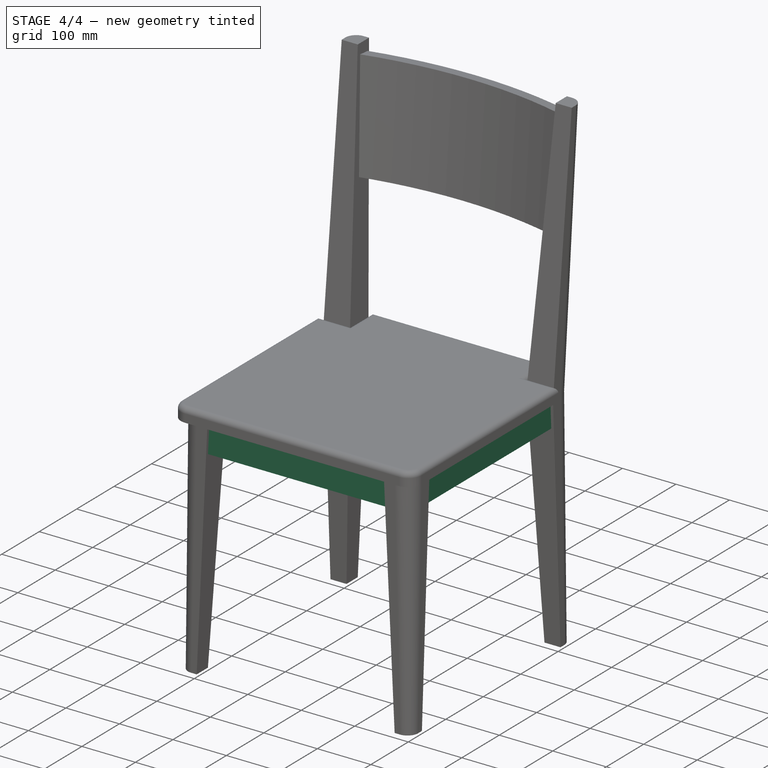
[diagram: stage 4 of 4 — iso view after this stage's code; geometry added in this stage tinted green]
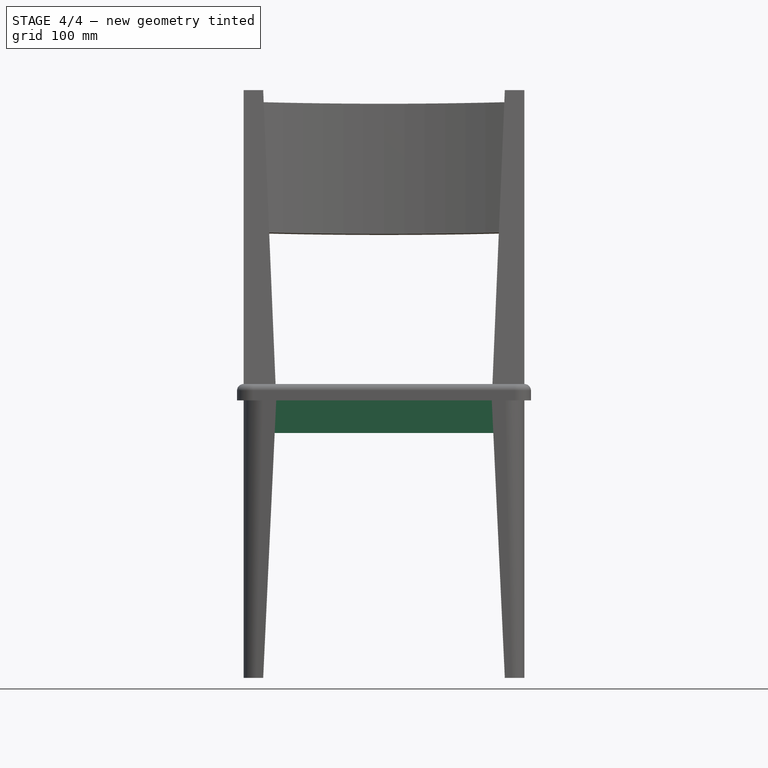
[diagram: stage 4 of 4 — front view after this stage's code; geometry added in this stage tinted green]
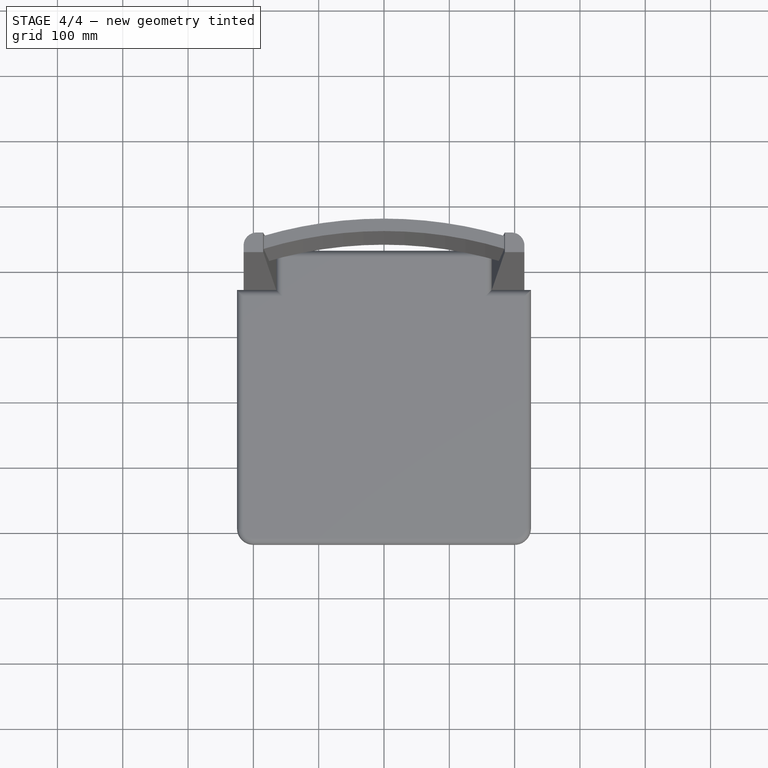
[diagram: stage 4 of 4 — top view after this stage's code; geometry added in this stage tinted green]
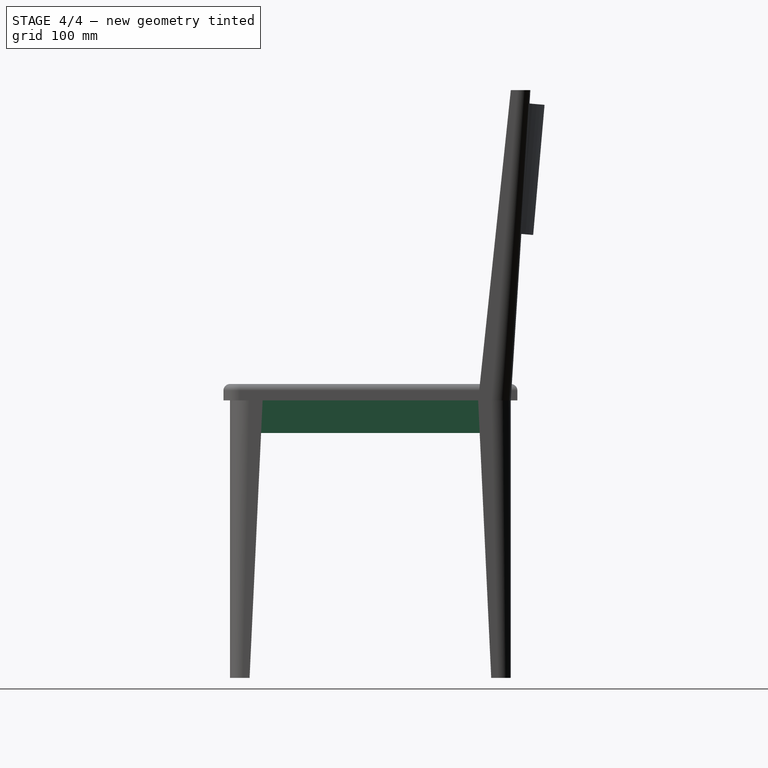
[diagram: stage 4 of 4 — right view after this stage's code; geometry added in this stage tinted green]
FEATURE [Sketcher::SketchObject] Sketch259
  ArcFitTolerance = 0
  AttachmentOffset = pos=(0,0,-175) rot=(0,0,1;0rad)
  AttachmentSupport = -> [Sketch022]
  ExternalGeometry = -> [Sketch022]
  FullyConstrained = true
  MakeInternals = false
  MapMode = 4
  Placement = pos=(-175,0,0) rot=(0.57735,0.57735,0.57735;2.0944rad)
  expr: .AttachmentOffset.Base.x = 0
  expr: .AttachmentOffset.Base.y = 0
  expr: .AttachmentOffset.Base.z = -VarSet.Base_dimensions_B_Length / 2 + 50 mm
  expr: .Constraints.Height_from_floor = VarSet.Seat_B_Height - VarSet.Seat_B_Thickness
  sketch-geometry (8):
    g0: LineSegment StartX=-210 StartY=425 StartZ=0 EndX=-185 EndY=425 EndZ=0
    g1: LineSegment StartX=-185 StartY=425 StartZ=0 EndX=-185 EndY=375 EndZ=0
    g2: LineSegment StartX=-185 StartY=375 StartZ=0 EndX=-210 EndY=375 EndZ=0
    g3: LineSegment StartX=-210 StartY=375 StartZ=0 EndX=-210 EndY=425 EndZ=0
    g4: LineSegment StartX=185 StartY=425 StartZ=0 EndX=210 EndY=425 EndZ=0
    g5: LineSegment StartX=210 StartY=425 StartZ=0 EndX=210 EndY=375 EndZ=0
    g6: LineSegment StartX=210 StartY=375 StartZ=0 EndX=185 EndY=375 EndZ=0
    g7: LineSegment StartX=185 StartY=375 StartZ=0 EndX=185 EndY=425 EndZ=0
  constraints (24):
    c: Horizontal(g0)
    c: Coincident(g0,g1)
    c: Vertical(g1)
    c: Coincident(g3,g0)
    c: Vertical(g3)
    c: DistanceX(g0,g0) = 25  'Width'
    c: Horizontal(g2)
    c: DistanceX(g-3,g0) = 15  'Front_retreat'
    c: DistanceY(g2,g0) = 50  'Height'
    c: DistanceY(g0) = 425  'Height_from_floor'
    c: Coincident(g4,g5)
    c: Coincident(g7,g4)
    c: Horizontal(g4)
    c: Horizontal(g6)
    c: Vertical(g5)
    c: Vertical(g7)
    c: DistanceX(g4,g4) = 25
    c: DistanceY(g6,g4) = 50
    c: Horizontal(g4,g0)
    c: DistanceX(g4,g-3) = 15
    c: Coincident(g6,g7)
    c: Coincident(g5,g6)
    c: Coincident(g2,g3)
    c: Coincident(g1,g2)
FEATURE [Part::Extrusion] Extrude084143354  label="Frame_"
  Base = -> Sketch259
  Dir = (1,0,0)
  DirMode = 2
  FaceMakerClass = Part::FaceMakerBullseye
  FaceMakerMode = 3
  LengthFwd = 350
  LengthRev = 0
  Solid = true
  Symmetric = false
  expr: LengthFwd = VarSet.Base_dimensions_B_Length - 100 mm
FEATURE [Sketcher::SketchObject] Sketch264
  ArcFitTolerance = 0
  AttachmentSupport = -> [Sketch022]
  ExternalGeometry = -> [Sketch022]
  FullyConstrained = true
  MakeInternals = false
  MapMode = 2
  sketch-geometry (5):
    g0: LineSegment StartX=185 StartY=215 StartZ=0 EndX=195 EndY=215 EndZ=0
    g1: LineSegment StartX=215 StartY=195 StartZ=0 EndX=215 EndY=185 EndZ=0
    g2: LineSegment StartX=215 StartY=185 StartZ=0 EndX=185 EndY=185 EndZ=0
    g3: LineSegment StartX=185 StartY=185 StartZ=0 EndX=185 EndY=215 EndZ=0
    g4: ArcOfCircle CenterX=195 CenterY=195 CenterZ=0 NormalX=0 NormalY=0 NormalZ=1 AngleXU=0 Radius=20 StartAngle=5e-16 EndAngle=1.5708
  constraints (14):
    c: Coincident(g1,g2)
    c: Coincident(g2,g3)
    c: Coincident(g3,g0)
    c: Horizontal(g0)
    c: Horizontal(g2)
    c: Vertical(g1)
    c: Vertical(g3)
    c: Tangent(g0,g4) = 1.5708
    c: Tangent(g1,g4) = 1.5708
    c: DistanceX(g2,g2) = 30  'Thickness'
    c: DistanceY(g0,g-4) = 10
    c: DistanceX(g1,g-4) = 10
    c: DistanceX(g2,g4) = 10
    c: DistanceY(g2,g4) = 10
FEATURE [Sketcher::SketchObject] Sketch265
  ArcFitTolerance = 0
  AttachmentOffset = pos=(0,0,425) rot=(0,0,1;0rad)
  AttachmentSupport = -> [Sketch022]
  ExternalGeometry = -> [Sketch022]
  FullyConstrained = true
  MakeInternals = false
  MapMode = 2
  Placement = pos=(0,0,425) rot=(0,0,1;0rad)
  expr: .AttachmentOffset.Base.z = VarSet.Seat_B_Height - VarSet.Seat_B_Thickness
  sketch-geometry (5):
    g0: LineSegment StartX=165 StartY=165 StartZ=0 EndX=215 EndY=165 EndZ=0
    g1: LineSegment StartX=215 StartY=165 StartZ=0 EndX=215 EndY=185 EndZ=0
    g2: LineSegment StartX=185 StartY=215 StartZ=0 EndX=165 EndY=215 EndZ=0
    g3: LineSegment StartX=165 StartY=215 StartZ=0 EndX=165 EndY=165 EndZ=0
    g4: ArcOfCircle CenterX=185 CenterY=185 CenterZ=0 NormalX=0 NormalY=0 NormalZ=1 AngleXU=0 Radius=30 StartAngle=0 EndAngle=1.5708
  constraints (14):
    c: Coincident(g0,g1)
    c: Coincident(g2,g3)
    c: Coincident(g3,g0)
    c: Horizontal(g0)
    c: Horizontal(g2)
    c: Vertical(g1)
    c: Vertical(g3)
    c: DistanceX(g0,g0) = 50  'Thickness'
    c: Tangent(g2,g4) = -1.5708
    c: Tangent(g1,g4) = -1.5708
    c: DistanceY(g2,g-4) = 10
    c: DistanceX(g0,g-4) = 10
    c: DistanceX(g0,g4) = 20
    c: DistanceY(g0,g4) = 20
FEATURE [Sketcher::SketchObject] Sketch266
  ArcFitTolerance = 0
  AttachmentOffset = pos=(0,0,-175) rot=(0,0,1;0rad)
  AttachmentSupport = -> [Sketch022]
  ExternalGeometry = -> [Sketch022]
  FullyConstrained = true
  MakeInternals = false
  MapMode = 3
  Placement = pos=(0,175,-3.89e-14) rot=(1,0,0;1.5708rad)
  expr: .AttachmentOffset.Base.x = 0
  expr: .AttachmentOffset.Base.y = 0
  expr: .AttachmentOffset.Base.z = -VarSet.Base_dimensions_B_Width / 2 + 50 mm
  expr: .Constraints.Height = VarSet.Seat_B_Height - VarSet.Seat_B_Thickness
  sketch-geometry (8):
    g0: LineSegment StartX=185 StartY=425 StartZ=0 EndX=210 EndY=425 EndZ=0
    g1: LineSegment StartX=210 StartY=425 StartZ=0 EndX=210 EndY=375 EndZ=0
    g2: LineSegment StartX=210 StartY=375 StartZ=0 EndX=185 EndY=375 EndZ=0
    g3: LineSegment StartX=185 StartY=375 StartZ=0 EndX=185 EndY=425 EndZ=0
    g4: LineSegment StartX=-185 StartY=425 StartZ=0 EndX=-210 EndY=425 EndZ=0
    g5: LineSegment StartX=-210 StartY=425 StartZ=0 EndX=-210 EndY=375 EndZ=0
    g6: LineSegment StartX=-210 StartY=375 StartZ=0 EndX=-185 EndY=375 EndZ=0
    g7: LineSegment StartX=-185 StartY=375 StartZ=0 EndX=-185 EndY=425 EndZ=0
  constraints (24):
    c: Horizontal(g0)
    c: Coincident(g0,g1)
    c: Vertical(g1)
    c: Coincident(g3,g0)
    c: Vertical(g3)
    c: DistanceY(g0) = 425  'Height'
    c: DistanceX(g0,g-3) = 15  'Retreat_2'
    c: DistanceX(g3,g1) = 25  'Thickness'
    c: Coincident(g4,g5)
    c: Coincident(g7,g4)
    c: Horizontal(g4)
    c: Horizontal(g6)
    c: Vertical(g5)
    c: Vertical(g7)
    c: Equal(g4,g0)
    c: Horizontal(g4,g0)
    c: Horizontal(g6,g2)
    c: Coincident(g2,g3)
    c: Coincident(g1,g2)
    c: Horizontal(g2)
    c: Coincident(g6,g5)
    c: Coincident(g7,g6)
    c: DistanceY(g1,g0) = 50
    c: DistanceX(g-3,g4) = 15
FEATURE [Part::Extrusion] Extrude084143355  label="Frame_02_"
  Base = -> Sketch266
  Dir = (0,-1,2e-16)
  DirMode = 2
  FaceMakerClass = Part::FaceMakerBullseye
  FaceMakerMode = 3
  LengthFwd = 350
  LengthRev = 0
  Solid = true
  Symmetric = false
  expr: LengthFwd = VarSet.Base_dimensions_B_Width - 100 mm
FEATURE [Sketcher::SketchObject] Sketch
  ArcFitTolerance = 0
  AttachmentOffset = pos=(0,0,700) rot=(-1,0,0;0.087266rad)
  AttachmentSupport = -> [Sketch022]
  ExternalGeometry = -> [Sketch022]
  FullyConstrained = false
  MakeInternals = false
  MapMode = 2
  Placement = pos=(0,0,700) rot=(-1,0,0;0.087266rad)
  expr: .AttachmentOffset.Base.z = VarSet.Backrest_B_Total_height - VarSet.Backrest_B_Height
  expr: .Constraints.Length = VarSet.Base_dimensions_B_Length - 80 mm
  sketch-geometry (4):
    g0: ArcOfCircle CenterX=-3.56e-14 CenterY=-403.193 CenterZ=0 NormalX=0 NormalY=0 NormalZ=1 AngleXU=0 Radius=653.403 StartAngle=1.28374 EndAngle=1.85786
    g1: ArcOfCircle CenterX=-3.56e-14 CenterY=-403.193 CenterZ=0 NormalX=0 NormalY=0 NormalZ=1 AngleXU=0 Radius=634.247 StartAngle=1.27481 EndAngle=1.86678
    g2: LineSegment StartX=-185 StartY=223.473 StartZ=0 EndX=-185 EndY=203.473 EndZ=0
    g3: LineSegment StartX=185 StartY=223.473 StartZ=0 EndX=185 EndY=203.473 EndZ=0
  constraints (11):
    c: Coincident(g1,g0)
    c: Coincident(g2,g0)
    c: Coincident(g2,g1)
    c: Coincident(g3,g0)
    c: Coincident(g3,g1)
    c: Vertical(g2)
    c: Vertical(g3)
    c: DistanceY(g2,g2) = 20  'Thickness'
    c: Symmetric(g1,g1,g-2)
    c: DistanceX(g1,g1) = 370  'Length'
    c: DistanceY(g0,g-3) = 61.68
FEATURE [App::TextDocument] Text_document011  label="Model_01.py"
  Text = #**************************************************************\n# To use, select all, copy and paste into the Python console.\n#**************************************************************\n\n# -*- coding: utf-8 -*-\n\n# Macro Begin: Chair_Model_01.FCMacro +++++++++++++++++++++++++++++++++++++++++++++++++\nimport FreeCAD\n\n#**************************************************************************\n # NOTE: Update the "Prop" with the corresponding renamed one when inserted into the file ("Prop001", "Prop002", etc.). For example: Obj = FreeCAD.ActiveDocument.Prop002\n#**************************************************************************\n\nObj = None\nObj = FreeCAD.ActiveDocument.Prop # See NOTE above\n\n#***********************\n# A_component\n#***********************\n\nObj.A_Component_Label = 'Chair'\n\n#***********************\n# Backrest\n#***********************\n\nObj.Backrest_B_Height = '200 mm'\n\nObj.Backrest_B_Total_height = '900 mm'\n\nObj.Backrest_C_Material = FreeCAD.ActiveDocument.Material041\n\n#***********************\n# Base_dimensions\n#***********************\n\nObj.Base_dimensions_B_Length = '450 mm'\n\nObj.Base_dimensions_B_Width = '450 mm'\n\n#***********************\n# Feet\n#***********************\n\nObj.Feet_C_Material = FreeCAD.ActiveDocument.Material051\n\n#***********************\n# Foot_frames\n#***********************\n\nObj.Foot_frames_C_Material = FreeCAD.ActiveDocument.Material051\n\n#***********************\n# Seat\n#***********************\n\nObj.Seat_B_Height = '450 mm'\n\nObj.Seat_B_Radius_fillet = '25 mm'\n\nObj.Seat_B_Thickness = '25 mm'\n\nObj.Seat_C_Material = FreeCAD.ActiveDocument.Material041\n\n#***********************\n# Visualization\n#***********************\n\nObj.Visualization_A_Visualization = False\nApp.activeDocument().recompute(None,True,True)\nObj.Visualization_A_Visualization = True\nApp.activeDocument().recompute(None,True,True)\n\n\n# Macro End: Chair_Model_01.FCMacro +++++++++++++++++++++++++++++++++++++++++++++++++
FEATURE [App::DocumentObjectGroup] Group  label="07-Macros_models_(open_copy_paste_Python_console)"
  Group = -> [Text_document011]
FEATURE [App::MaterialObjectPython] Material048  label="aluminum generic"  # material (typed FeaturePython)
  Material = AuthorAndLicense=Uwe Stöhr; CardName=Aluminum-Generic; Color=(0.8, 0.8, 0.8, 1.0); Density=2700 kg/m^3; DiffuseColor=(0.8, 0.8, 0.8, 1.0); ElectricalConductivity=370370.4 S/m; Father=Metal; KindOfMaterial=Aluminium; Name=aluminum generic; PoissonRatio=0.35; RelativePermeability=1.0; SectionColor=(0.8, 0.8, 0.8, 1.0); ShearModulus=25.0 GPa; SpecificHeat=897.0 J/kg/K; ThermalConductivity=237.0 W/m/K; ThermalExpansionCoefficient=23.1 µm/m/K; Transparency=0; UltimateTensileStrength=310 MPa; ViewColor=(0.8, 0.8, 0.8, 1.0); YoungsModulus=70000 MPa
  Transparency = 0
FEATURE [App::MaterialObjectPython] Material049  label="iron generic"  # material (typed FeaturePython)
  Material = AuthorAndLicense=Uwe Stöhr; CardName=Iron-Generic; Color=(0.8, 0.8, 0.8, 1.0); Density=7874 kg/m^3; DiffuseColor=(0.3607843220233917, 0.3607843220233917, 0.40784314274787903); ElectricalConductivity=10.3 MS/m; Father=Metal; KindOfMaterial=Iron; Name=iron generic; PoissonRatio=0.29; RelativePermeability=5000.0; SectionColor=(0.8, 0.8, 0.8, 1.0); ShearModulus=82.0 GPa; SpecificHeat=460.5 J/kg/K; ThermalConductivity=80.4 W/m/K; ThermalExpansionCoefficient=11.8 µm/m/K; Transparency=0; UltimateTensileStrength=497 MPa; ViewColor=(0.8, 0.8, 0.8, 1.0); YieldStrength=428 MPa; YoungsModulus=211 GPa
  Transparency = 0
FEATURE [App::DocumentObjectGroup] Group295  label="Metal_"
  Group = -> [Material049,Material048]
FEATURE [App::MaterialObjectPython] Material053  label="wood generic"  # material (typed FeaturePython)
  Description = A standard construction wood
  Material = AuthorAndLicense=(c) 2015 Bernd Hahnebach (CC-BY 3.0); CardName=Wood-Generic; Color=(0.8, 0.8, 0.8, 1.0); Density=700 kg/m^3; Description=A standard construction wood; DiffuseColor=(0.45490196347236633, 0.22745098173618317, 0.0); Father=Aggregate; Name=wood generic; PoissonRatio=0.05; ProductURL=https://en.wikipedia.org/wiki/Wood; SectionColor=(0.8, 0.8, 0.8, 1.0); Transparency=0; ViewColor=(0.8, 0.8, 0.8, 1.0); YoungsModulus=12000 MPa
  ProductURL = https://en.wikipedia.org/wiki/Wood
  Transparency = 0
FEATURE [Part::Compound] Compound  label="03-Foot_frame_"
  Links = -> [Extrude084143354,Extrude084143355]
  Material = -> Material053
  expr: Material = VarSet.Foot_frames_C_Material
  expr: Visibility = VarSet.Visualization_A_Visualization
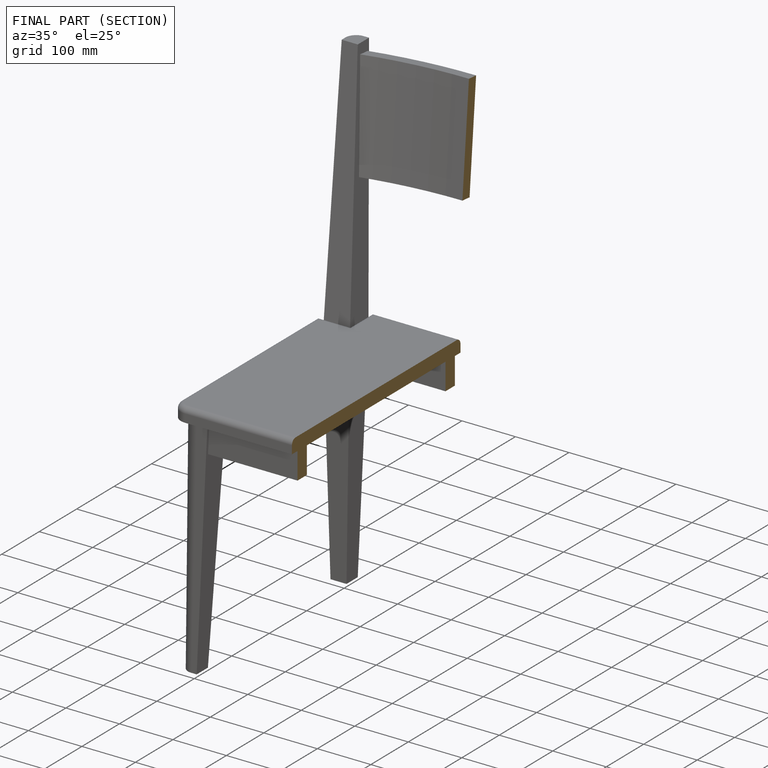
[diagram: finished part — half-section view (interior)]
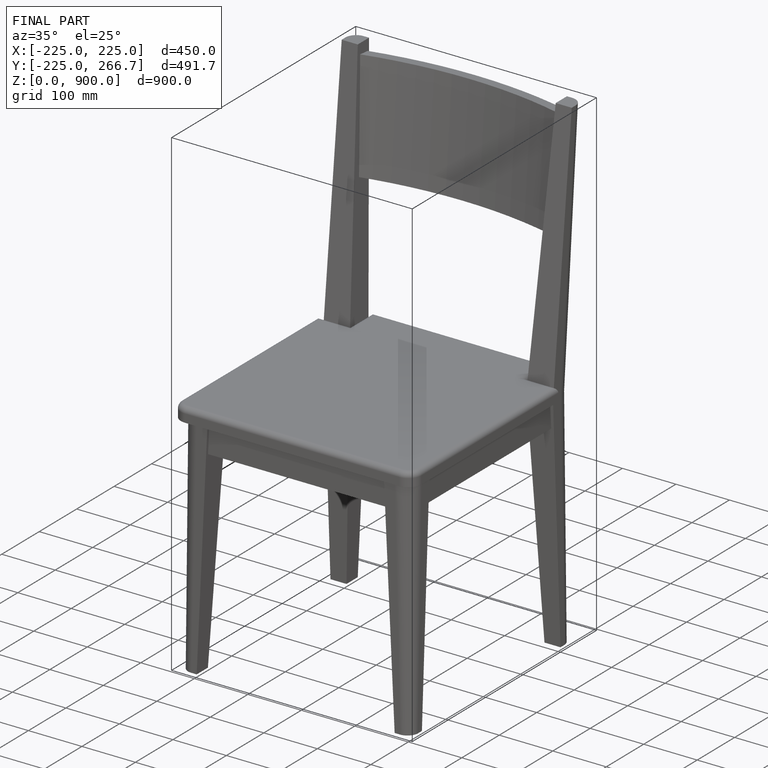
[diagram: finished part — iso view with bounding-box wireframe]
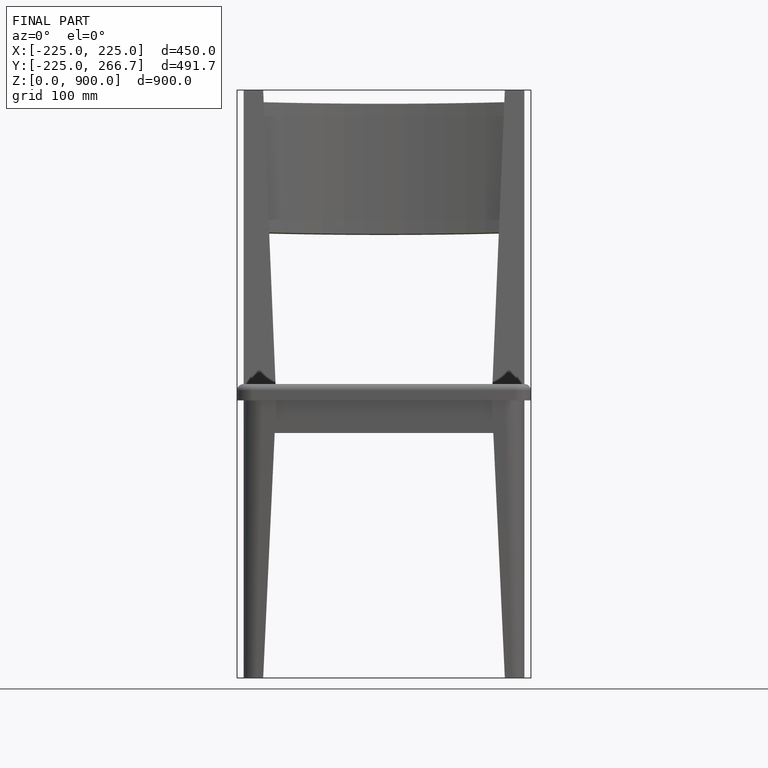
[diagram: finished part — front view with bounding-box wireframe]
